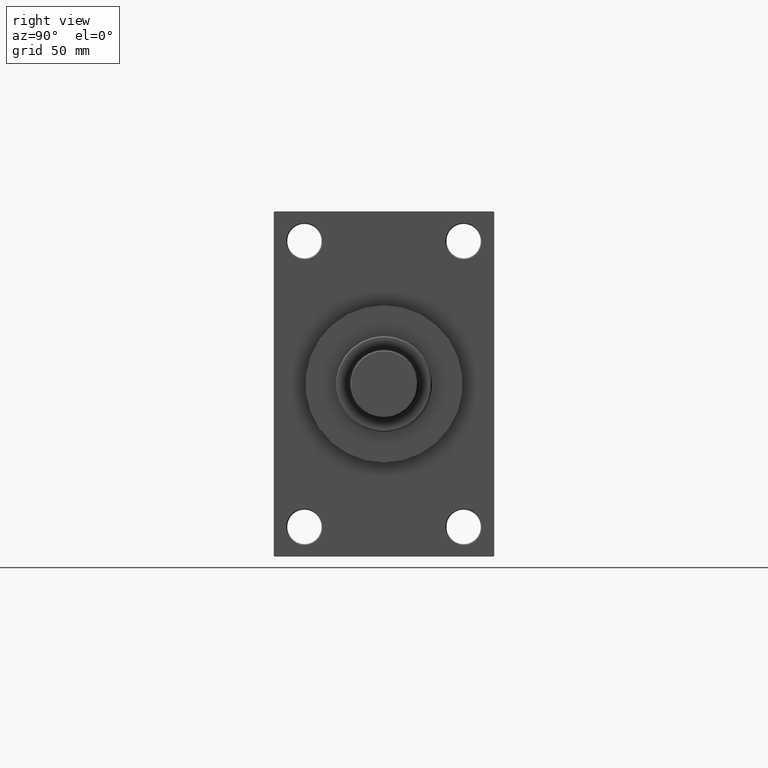
[diagram: clean part render]
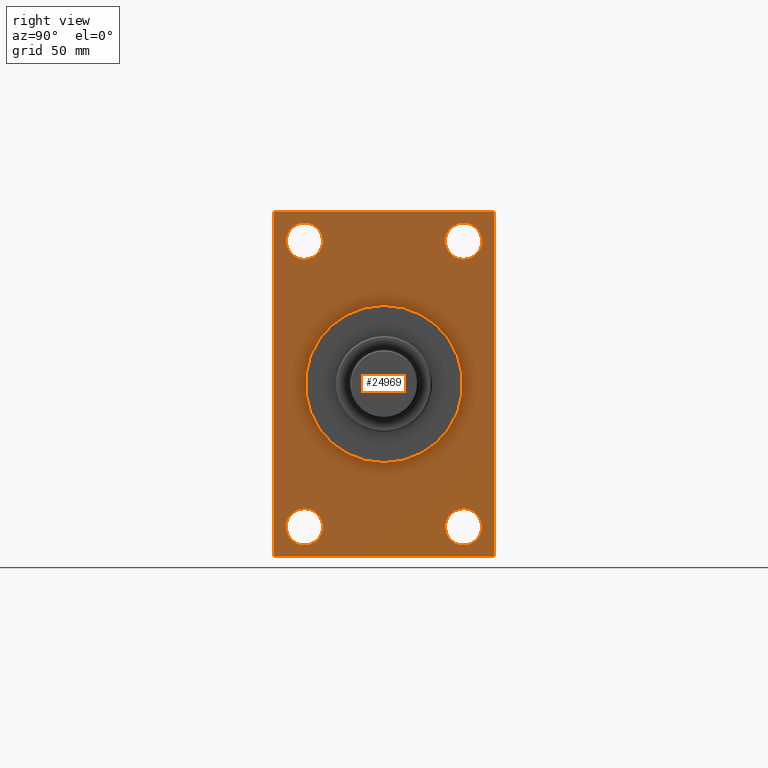
[diagram: same view with one face highlighted and labeled with its STEP entity id]
A machine part, right view. The second image highlights one B-rep face of the part: STEP entity #24969.
In plain terms, the highlighted planar face has unit normal (-1, 0, 0).
Its self-contained STEP definition (entity closure, byte-faithful):
#177 = CIRCLE ( 'NONE', #1732, 9.500000000000230926 ) ;
#746 = VERTEX_POINT ( 'NONE', #32351 ) ;
#813 = CARTESIAN_POINT ( 'NONE',  ( 209.0000000000000284, -41.49999999999999289, 74.50000000000001421 ) ) ;
#1207 = FACE_BOUND ( 'NONE', #17209, .T. ) ;
#1515 = DIRECTION ( 'NONE',  ( 0.000000000000000000, 0.000000000000000000, -1.000000000000000000 ) ) ;
#1732 = AXIS2_PLACEMENT_3D ( 'NONE', #36158, #6954, #3770 ) ;
#2151 = CARTESIAN_POINT ( 'NONE',  ( 209.0000000000000284, -41.49999999999999289, 74.50000000000001421 ) ) ;
#3058 = CARTESIAN_POINT ( 'NONE',  ( 209.0000000000000284, 41.50000000000000711, -84.00000000000014211 ) ) ;
#3770 = DIRECTION ( 'NONE',  ( 0.000000000000000000, 0.000000000000000000, 1.000000000000000000 ) ) ;
#4311 = EDGE_LOOP ( 'NONE', ( #23582, #37031 ) ) ;
#4710 = CARTESIAN_POINT ( 'NONE',  ( 209.0000000000000284, -57.50000000000002132, 89.99999999999997158 ) ) ;
#4721 = EDGE_CURVE ( 'NONE', #47700, #8721, #39606, .T. ) ;
#4865 = DIRECTION ( 'NONE',  ( -0.000000000000000000, 0.000000000000000000, 1.000000000000000000 ) ) ;
#5098 = PLANE ( 'NONE',  #26752 ) ;
#5194 = CARTESIAN_POINT ( 'NONE',  ( 209.0000000000000284, 0.000000000000000000, 0.000000000000000000 ) ) ;
#5540 = LINE ( 'NONE', #27676, #44888 ) ;
#5551 = DIRECTION ( 'NONE',  ( 0.000000000000000000, 3.854941057726238467E-17, -1.000000000000000000 ) ) ;
#6321 = DIRECTION ( 'NONE',  ( 0.000000000000000000, 0.7071067811865376918, -0.7071067811865573427 ) ) ;
#6746 = VERTEX_POINT ( 'NONE', #32407 ) ;
#6954 = DIRECTION ( 'NONE',  ( -1.000000000000000000, 0.000000000000000000, -0.000000000000000000 ) ) ;
#7097 = CIRCLE ( 'NONE', #30410, 9.500000000000147438 ) ;
#7173 = AXIS2_PLACEMENT_3D ( 'NONE', #5194, #21181, #42204 ) ;
#7799 = CIRCLE ( 'NONE', #21010, 9.500000000000147438 ) ;
#7924 = DIRECTION ( 'NONE',  ( -1.000000000000000000, 0.000000000000000000, -0.000000000000000000 ) ) ;
#8111 = VERTEX_POINT ( 'NONE', #39373 ) ;
#8155 = CARTESIAN_POINT ( 'NONE',  ( 209.0000000000000284, 5.021051876504148963E-15, -41.00000000000000000 ) ) ;
#8367 = DIRECTION ( 'NONE',  ( 0.000000000000000000, 0.000000000000000000, 1.000000000000000000 ) ) ;
#8388 = ORIENTED_EDGE ( 'NONE', *, *, #47582, .T. ) ;
#8660 = AXIS2_PLACEMENT_3D ( 'NONE', #33927, #44642, #37091 ) ;
#8721 = VERTEX_POINT ( 'NONE', #39143 ) ;
#8982 = ORIENTED_EDGE ( 'NONE', *, *, #33196, .T. ) ;
#8995 = DIRECTION ( 'NONE',  ( -1.000000000000000000, 0.000000000000000000, -0.000000000000000000 ) ) ;
#9096 = VECTOR ( 'NONE', #20560, 999.9999999999998863 ) ;
#9395 = CARTESIAN_POINT ( 'NONE',  ( 209.0000000000000284, -41.49999999999999289, 84.00000000000015632 ) ) ;
#9454 = CARTESIAN_POINT ( 'NONE',  ( 209.0000000000000284, 57.49999999999997158, 89.99999999999998579 ) ) ;
#9470 = ORIENTED_EDGE ( 'NONE', *, *, #47518, .T. ) ;
#9849 = ORIENTED_EDGE ( 'NONE', *, *, #13502, .T. ) ;
#10101 = EDGE_CURVE ( 'NONE', #21486, #8721, #19831, .T. ) ;
#10931 = CARTESIAN_POINT ( 'NONE',  ( 209.0000000000000284, 41.50000000000000711, -74.50000000000000000 ) ) ;
#11174 = CIRCLE ( 'NONE', #28267, 9.500000000000147438 ) ;
#11376 = VECTOR ( 'NONE', #22732, 1000.000000000000114 ) ;
#11766 = VERTEX_POINT ( 'NONE', #9395 ) ;
#11950 = FACE_BOUND ( 'NONE', #39259, .T. ) ;
#12203 = DIRECTION ( 'NONE',  ( -1.000000000000000000, 0.000000000000000000, -0.000000000000000000 ) ) ;
#12632 = ORIENTED_EDGE ( 'NONE', *, *, #4721, .F. ) ;
#13018 = VERTEX_POINT ( 'NONE', #34126 ) ;
#13454 = AXIS2_PLACEMENT_3D ( 'NONE', #20204, #12203, #45773 ) ;
#13456 = CARTESIAN_POINT ( 'NONE',  ( 209.0000000000000284, -41.49999999999999289, -64.99999999999975842 ) ) ;
#13502 = EDGE_CURVE ( 'NONE', #11766, #746, #11174, .T. ) ;
#13669 = CARTESIAN_POINT ( 'NONE',  ( 209.0000000000000284, 41.50000000000000711, 84.00000000000015632 ) ) ;
#14075 = VERTEX_POINT ( 'NONE', #3058 ) ;
#14079 = CIRCLE ( 'NONE', #8660, 9.500000000000230926 ) ;
#15201 = CARTESIAN_POINT ( 'NONE',  ( 209.0000000000000284, 0.000000000000000000, 0.000000000000000000 ) ) ;
#15695 = ORIENTED_EDGE ( 'NONE', *, *, #33413, .F. ) ;
#15920 = VERTEX_POINT ( 'NONE', #29055 ) ;
#16471 = VECTOR ( 'NONE', #30785, 999.9999999999998863 ) ;
#16504 = EDGE_LOOP ( 'NONE', ( #8388, #18245, #15695, #47285, #12632, #24620, #8982, #24768 ) ) ;
#17001 = DIRECTION ( 'NONE',  ( -1.000000000000000000, 0.000000000000000000, -0.000000000000000000 ) ) ;
#17209 = EDGE_LOOP ( 'NONE', ( #18106, #27368 ) ) ;
#17370 = CIRCLE ( 'NONE', #25912, 41.00000000000000000 ) ;
#17576 = ORIENTED_EDGE ( 'NONE', *, *, #17920, .T. ) ;
#17612 = AXIS2_PLACEMENT_3D ( 'NONE', #10931, #30133, #21628 ) ;
#17676 = CARTESIAN_POINT ( 'NONE',  ( 209.0000000000000284, 57.49999999999997158, 89.99999999999998579 ) ) ;
#17920 = EDGE_CURVE ( 'NONE', #22987, #34026, #177, .T. ) ;
#18082 = EDGE_CURVE ( 'NONE', #28659, #42685, #28125, .T. ) ;
#18106 = ORIENTED_EDGE ( 'NONE', *, *, #18082, .F. ) ;
#18245 = ORIENTED_EDGE ( 'NONE', *, *, #36144, .T. ) ;
#18589 = CARTESIAN_POINT ( 'NONE',  ( 209.0000000000000284, 41.50000000000000711, -74.50000000000000000 ) ) ;
#19399 = EDGE_CURVE ( 'NONE', #6746, #46779, #44553, .T. ) ;
#19673 = ORIENTED_EDGE ( 'NONE', *, *, #19399, .T. ) ;
#19831 = LINE ( 'NONE', #31260, #16471 ) ;
#20204 = CARTESIAN_POINT ( 'NONE',  ( 209.0000000000000284, 41.50000000000000711, 74.50000000000001421 ) ) ;
#20560 = DIRECTION ( 'NONE',  ( -0.000000000000000000, -0.7071067811865525687, -0.7071067811865425767 ) ) ;
#21010 = AXIS2_PLACEMENT_3D ( 'NONE', #34434, #7924, #26397 ) ;
#21181 = DIRECTION ( 'NONE',  ( 1.000000000000000000, 0.000000000000000000, 0.000000000000000000 ) ) ;
#21486 = VERTEX_POINT ( 'NONE', #34545 ) ;
#21560 = VECTOR ( 'NONE', #6321, 1000.000000000000114 ) ;
#21628 = DIRECTION ( 'NONE',  ( 0.000000000000000000, 0.000000000000000000, 1.000000000000000000 ) ) ;
#22732 = DIRECTION ( 'NONE',  ( 0.000000000000000000, -0.7071067811865474617, 0.7071067811865474617 ) ) ;
#22987 = VERTEX_POINT ( 'NONE', #37149 ) ;
#23198 = LINE ( 'NONE', #4710, #35049 ) ;
#23279 = VECTOR ( 'NONE', #5551, 1000.000000000000000 ) ;
#23582 = ORIENTED_EDGE ( 'NONE', *, *, #30929, .T. ) ;
#24158 = EDGE_CURVE ( 'NONE', #42685, #28659, #17370, .T. ) ;
#24200 = LINE ( 'NONE', #28085, #9096 ) ;
#24620 = ORIENTED_EDGE ( 'NONE', *, *, #29929, .T. ) ;
#24768 = ORIENTED_EDGE ( 'NONE', *, *, #32303, .T. ) ;
#24966 = DIRECTION ( 'NONE',  ( 0.000000000000000000, -1.000000000000000000, -1.206764157201257291E-16 ) ) ;
#24969 = ADVANCED_FACE ( 'NONE', ( #46225, #11950, #41855, #35024, #1207, #37970 ), #5098, .F. ) ;
#25296 = LINE ( 'NONE', #32612, #21560 ) ;
#25912 = AXIS2_PLACEMENT_3D ( 'NONE', #15201, #30272, #34406 ) ;
#26113 = EDGE_LOOP ( 'NONE', ( #44843, #9849 ) ) ;
#26397 = DIRECTION ( 'NONE',  ( 0.000000000000000000, 0.000000000000000000, 1.000000000000000000 ) ) ;
#26752 = AXIS2_PLACEMENT_3D ( 'NONE', #42099, #8995, #4865 ) ;
#27368 = ORIENTED_EDGE ( 'NONE', *, *, #24158, .F. ) ;
#27555 = CARTESIAN_POINT ( 'NONE',  ( 209.0000000000000284, 57.49999999999997158, 89.50000000000001421 ) ) ;
#27676 = CARTESIAN_POINT ( 'NONE',  ( 209.0000000000000284, 57.49999999999997868, -90.00000000000000000 ) ) ;
#28085 = CARTESIAN_POINT ( 'NONE',  ( 209.0000000000000284, -57.50000000000002132, 89.50000000000008527 ) ) ;
#28125 = CIRCLE ( 'NONE', #7173, 41.00000000000000000 ) ;
#28267 = AXIS2_PLACEMENT_3D ( 'NONE', #2151, #17001, #46934 ) ;
#28659 = VERTEX_POINT ( 'NONE', #40321 ) ;
#29055 = CARTESIAN_POINT ( 'NONE',  ( 209.0000000000000284, -57.50000000000002132, -89.49999999999997158 ) ) ;
#29929 = EDGE_CURVE ( 'NONE', #47700, #46905, #33213, .T. ) ;
#30133 = DIRECTION ( 'NONE',  ( -1.000000000000000000, 0.000000000000000000, -0.000000000000000000 ) ) ;
#30272 = DIRECTION ( 'NONE',  ( 1.000000000000000000, 0.000000000000000000, 0.000000000000000000 ) ) ;
#30410 = AXIS2_PLACEMENT_3D ( 'NONE', #813, #41701, #8367 ) ;
#30785 = DIRECTION ( 'NONE',  ( -0.000000000000000000, 0.7071067811865771047, 0.7071067811865180408 ) ) ;
#30929 = EDGE_CURVE ( 'NONE', #14075, #8111, #38586, .T. ) ;
#31260 = CARTESIAN_POINT ( 'NONE',  ( 209.0000000000000284, 57.49999999999997868, -89.50000000000001421 ) ) ;
#31718 = CARTESIAN_POINT ( 'NONE',  ( 209.0000000000000284, -57.00000000000004974, -90.00000000000001421 ) ) ;
#32303 = EDGE_CURVE ( 'NONE', #34775, #13018, #24200, .T. ) ;
#32351 = CARTESIAN_POINT ( 'NONE',  ( 209.0000000000000284, -41.49999999999999289, 64.99999999999985789 ) ) ;
#32407 = CARTESIAN_POINT ( 'NONE',  ( 209.0000000000000284, 41.50000000000000711, 64.99999999999985789 ) ) ;
#32416 = EDGE_CURVE ( 'NONE', #8111, #14075, #37875, .T. ) ;
#32612 = CARTESIAN_POINT ( 'NONE',  ( 209.0000000000000284, -57.00000000000004974, -90.00000000000001421 ) ) ;
#33196 = EDGE_CURVE ( 'NONE', #46905, #34775, #40542, .T. ) ;
#33213 = LINE ( 'NONE', #48055, #11376 ) ;
#33215 = AXIS2_PLACEMENT_3D ( 'NONE', #18589, #47566, #33441 ) ;
#33413 = EDGE_CURVE ( 'NONE', #21486, #44762, #5540, .T. ) ;
#33441 = DIRECTION ( 'NONE',  ( 0.000000000000000000, 0.000000000000000000, 1.000000000000000000 ) ) ;
#33687 = EDGE_LOOP ( 'NONE', ( #19673, #34861 ) ) ;
#33927 = CARTESIAN_POINT ( 'NONE',  ( 209.0000000000000284, -41.49999999999999289, -74.49999999999998579 ) ) ;
#34026 = VERTEX_POINT ( 'NONE', #13456 ) ;
#34126 = CARTESIAN_POINT ( 'NONE',  ( 209.0000000000000284, -57.50000000000002132, 89.50000000000008527 ) ) ;
#34406 = DIRECTION ( 'NONE',  ( 0.000000000000000000, 0.000000000000000000, -1.000000000000000000 ) ) ;
#34434 = CARTESIAN_POINT ( 'NONE',  ( 209.0000000000000284, 41.50000000000000711, 74.50000000000001421 ) ) ;
#34545 = CARTESIAN_POINT ( 'NONE',  ( 209.0000000000000284, 56.99999999999995026, -90.00000000000000000 ) ) ;
#34751 = DIRECTION ( 'NONE',  ( 0.000000000000000000, -1.000000000000000000, -1.206764157201257045E-16 ) ) ;
#34775 = VERTEX_POINT ( 'NONE', #47583 ) ;
#34861 = ORIENTED_EDGE ( 'NONE', *, *, #45442, .T. ) ;
#35024 = FACE_BOUND ( 'NONE', #33687, .T. ) ;
#35049 = VECTOR ( 'NONE', #1515, 1000.000000000000000 ) ;
#36144 = EDGE_CURVE ( 'NONE', #15920, #44762, #25296, .T. ) ;
#36158 = CARTESIAN_POINT ( 'NONE',  ( 209.0000000000000284, -41.49999999999999289, -74.49999999999998579 ) ) ;
#37031 = ORIENTED_EDGE ( 'NONE', *, *, #32416, .T. ) ;
#37091 = DIRECTION ( 'NONE',  ( 0.000000000000000000, 0.000000000000000000, 1.000000000000000000 ) ) ;
#37149 = CARTESIAN_POINT ( 'NONE',  ( 209.0000000000000284, -41.49999999999999289, -84.00000000000021316 ) ) ;
#37875 = CIRCLE ( 'NONE', #33215, 9.500000000000147438 ) ;
#37970 = FACE_OUTER_BOUND ( 'NONE', #16504, .T. ) ;
#38586 = CIRCLE ( 'NONE', #17612, 9.500000000000147438 ) ;
#39143 = CARTESIAN_POINT ( 'NONE',  ( 209.0000000000000284, 57.49999999999997868, -89.49999999999995737 ) ) ;
#39259 = EDGE_LOOP ( 'NONE', ( #17576, #9470 ) ) ;
#39373 = CARTESIAN_POINT ( 'NONE',  ( 209.0000000000000284, 41.50000000000000711, -64.99999999999984368 ) ) ;
#39606 = LINE ( 'NONE', #9454, #23279 ) ;
#40321 = CARTESIAN_POINT ( 'NONE',  ( 209.0000000000000284, 0.000000000000000000, 41.00000000000000000 ) ) ;
#40542 = LINE ( 'NONE', #17676, #43350 ) ;
#41701 = DIRECTION ( 'NONE',  ( -1.000000000000000000, 0.000000000000000000, -0.000000000000000000 ) ) ;
#41855 = FACE_BOUND ( 'NONE', #4311, .T. ) ;
#42099 = CARTESIAN_POINT ( 'NONE',  ( 209.0000000000000284, 0.000000000000000000, 0.000000000000000000 ) ) ;
#42204 = DIRECTION ( 'NONE',  ( 0.000000000000000000, 0.000000000000000000, -1.000000000000000000 ) ) ;
#42685 = VERTEX_POINT ( 'NONE', #8155 ) ;
#43350 = VECTOR ( 'NONE', #24966, 1000.000000000000000 ) ;
#44553 = CIRCLE ( 'NONE', #13454, 9.500000000000147438 ) ;
#44642 = DIRECTION ( 'NONE',  ( -1.000000000000000000, 0.000000000000000000, -0.000000000000000000 ) ) ;
#44762 = VERTEX_POINT ( 'NONE', #31718 ) ;
#44843 = ORIENTED_EDGE ( 'NONE', *, *, #47581, .T. ) ;
#44888 = VECTOR ( 'NONE', #34751, 1000.000000000000000 ) ;
#45442 = EDGE_CURVE ( 'NONE', #46779, #6746, #7799, .T. ) ;
#45773 = DIRECTION ( 'NONE',  ( 0.000000000000000000, 0.000000000000000000, 1.000000000000000000 ) ) ;
#46225 = FACE_BOUND ( 'NONE', #26113, .T. ) ;
#46779 = VERTEX_POINT ( 'NONE', #13669 ) ;
#46905 = VERTEX_POINT ( 'NONE', #47247 ) ;
#46934 = DIRECTION ( 'NONE',  ( 0.000000000000000000, 0.000000000000000000, 1.000000000000000000 ) ) ;
#47247 = CARTESIAN_POINT ( 'NONE',  ( 209.0000000000000284, 57.00000000000000000, 89.99999999999998579 ) ) ;
#47285 = ORIENTED_EDGE ( 'NONE', *, *, #10101, .T. ) ;
#47518 = EDGE_CURVE ( 'NONE', #34026, #22987, #14079, .T. ) ;
#47566 = DIRECTION ( 'NONE',  ( -1.000000000000000000, 0.000000000000000000, -0.000000000000000000 ) ) ;
#47581 = EDGE_CURVE ( 'NONE', #746, #11766, #7097, .T. ) ;
#47582 = EDGE_CURVE ( 'NONE', #13018, #15920, #23198, .T. ) ;
#47583 = CARTESIAN_POINT ( 'NONE',  ( 209.0000000000000284, -57.00000000000012790, 89.99999999999997158 ) ) ;
#47700 = VERTEX_POINT ( 'NONE', #27555 ) ;
#48055 = CARTESIAN_POINT ( 'NONE',  ( 209.0000000000000284, 57.00000000000000000, 89.99999999999998579 ) ) ;